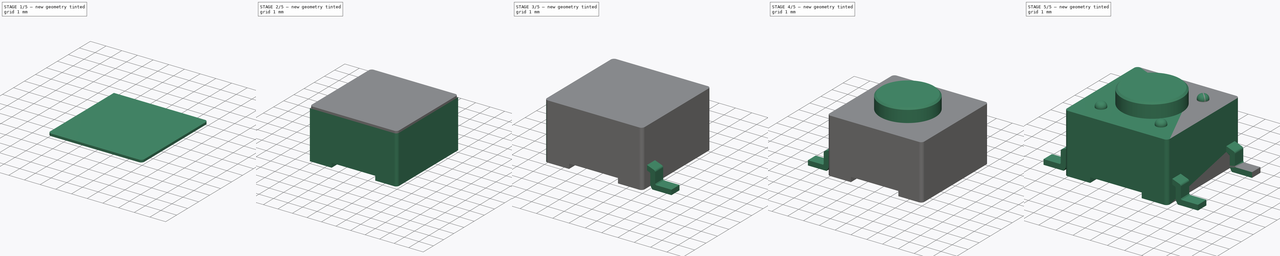
[diagram: build sequence overview — one tinted view per stage of 5, left to right]
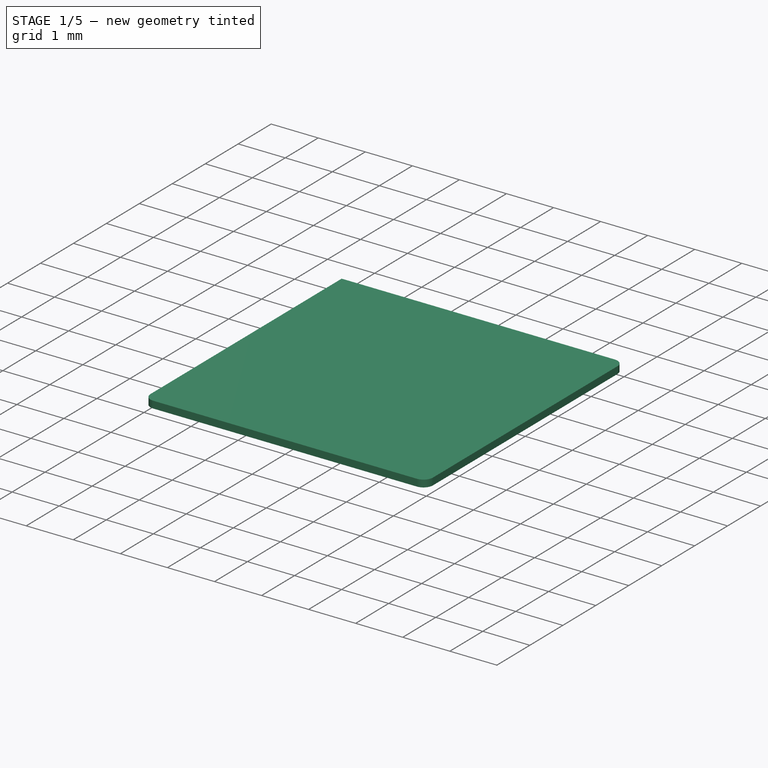
[diagram: stage 1 of 5 — iso view after this stage's code; geometry added in this stage tinted green]
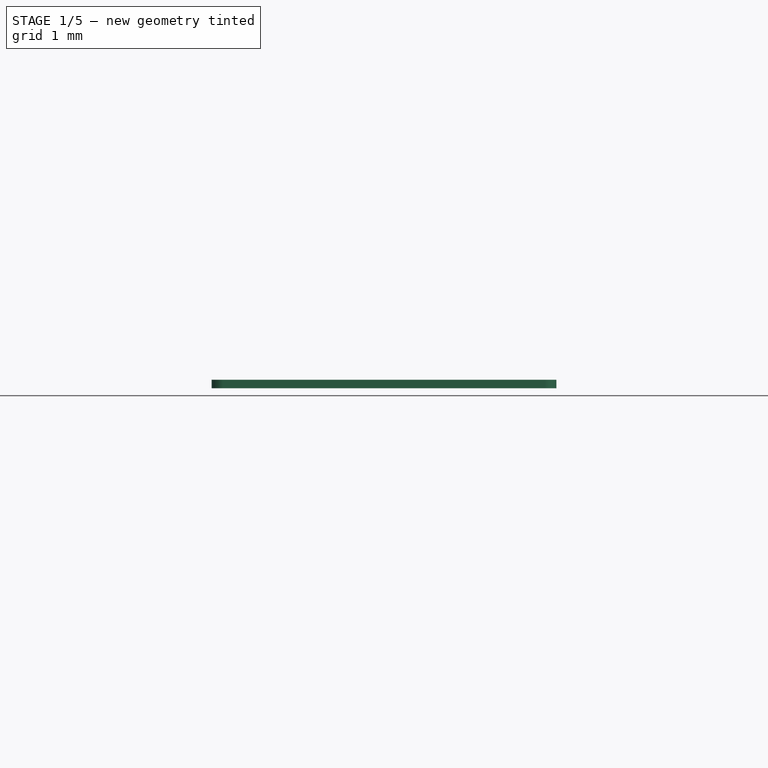
[diagram: stage 1 of 5 — front view after this stage's code; geometry added in this stage tinted green]
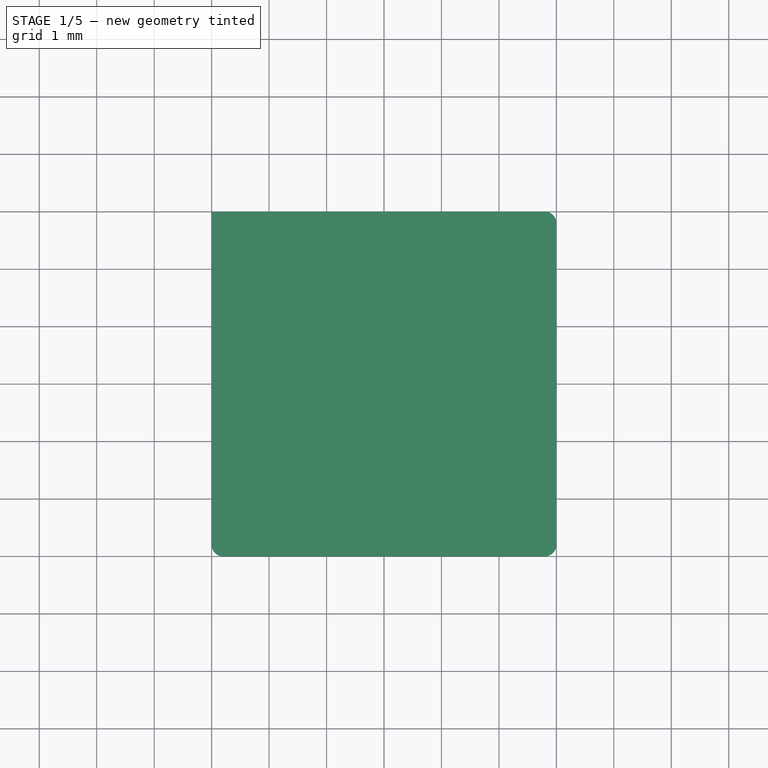
[diagram: stage 1 of 5 — top view after this stage's code; geometry added in this stage tinted green]
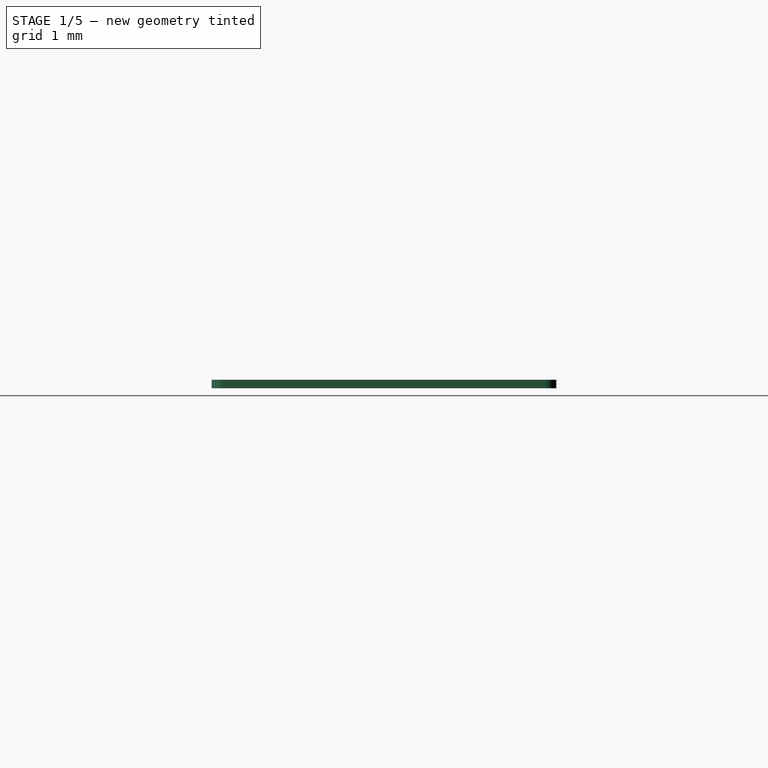
[diagram: stage 1 of 5 — right view after this stage's code; geometry added in this stage tinted green]
FCSTD DOCUMENT  (FreeCAD 0.15R4671 (Git))
Label: SW_SPST_PTS645
License: All rights reserved
LicenseURL: http://en.wikipedia.org/wiki/All_rights_reserved
objects: PartDesign::Fillet×9, Sketcher::SketchObject×6, PartDesign::Pad×5, Part::FeaturePython×2, PartDesign::Chamfer×1, Part::Mirroring×1, PartDesign::Pocket×1, Part::MultiFuse×1
note: 32 computed .brp shape members not serialized (recipe doc carries the construction recipe); baked Part::Feature solids carry a one-line shape summary decoded from their .brp

FEATURE [Sketcher::SketchObject] Sketch001
  Placement = pos=(0,0,3.3) rot=(0,0,1;0rad)
  sketch-geometry (4):
    g0: LineSegment StartX=0 StartY=0 StartZ=0 EndX=6 EndY=0 EndZ=0
    g1: LineSegment StartX=6 StartY=0 StartZ=0 EndX=6 EndY=6 EndZ=0
    g2: LineSegment StartX=6 StartY=6 StartZ=0 EndX=0 EndY=6 EndZ=0
    g3: LineSegment StartX=0 StartY=6 StartZ=0 EndX=0 EndY=0 EndZ=0
  constraints (11):
    c: Coincident(g0,g1)
    c: Coincident(g1,g2)
    c: Coincident(g2,g3)
    c: Coincident(g3,g0)
    c: Horizontal(g0)
    c: Horizontal(g2)
    c: Vertical(g1)
    c: Vertical(g3)
    c: Coincident(g0,g-1)
    c: Distance(g2) = 6
    c: Distance(g1) = 6
FEATURE [PartDesign::Pad] Pad001  label="Cap"
  Length = 0.15
  Length2 = 100
  Placement = pos=(0,0,3.3) rot=(0,0,1;0rad)
  Sketch = -> Sketch001
  Type = 0
FEATURE [PartDesign::Fillet] Fillet002
  Base = -> Pad001 [Edge2]
  Placement = pos=(0,0,3.3) rot=(0,0,1;0rad)
  Radius = 0.2
FEATURE [PartDesign::Fillet] Fillet004
  Base = -> Fillet002 [Edge3]
  Placement = pos=(0,0,3.3) rot=(0,0,1;0rad)
  Radius = 0.2
FEATURE [PartDesign::Fillet] Fillet006
  Base = -> Fillet004 [Edge18]
  Placement = pos=(0,0,3.3) rot=(0,0,1;0rad)
  Radius = 0.2
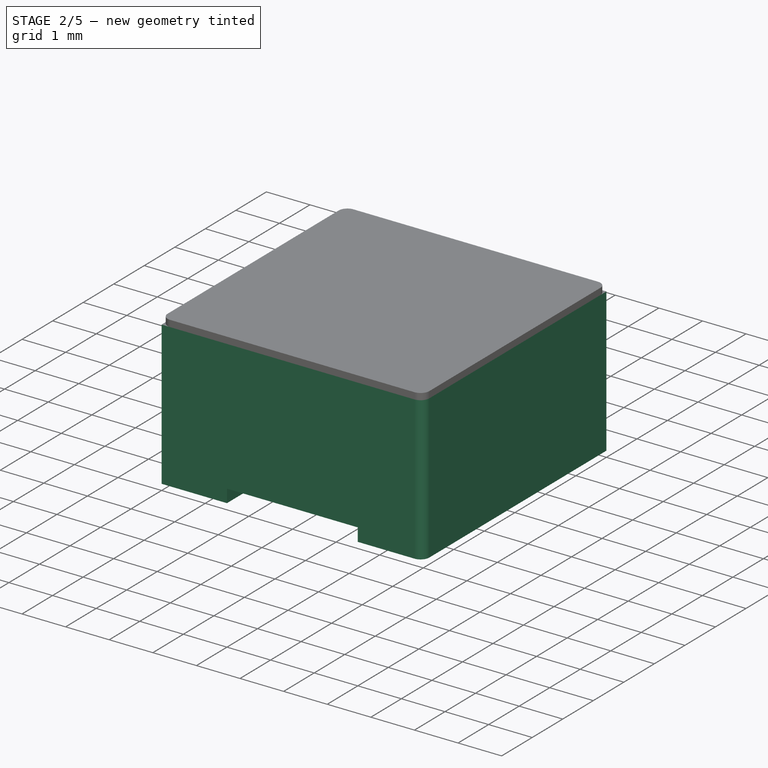
[diagram: stage 2 of 5 — iso view after this stage's code; geometry added in this stage tinted green]
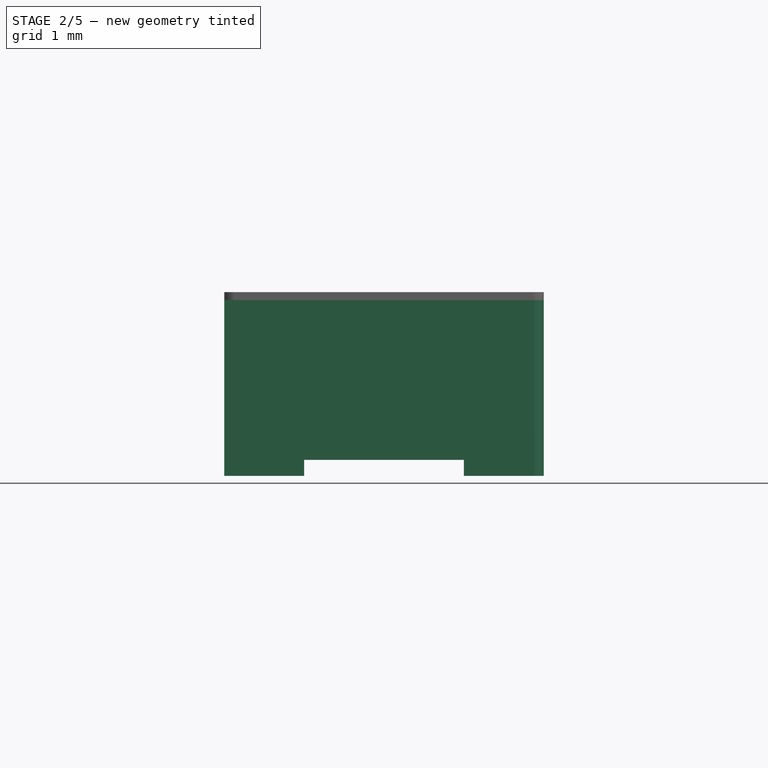
[diagram: stage 2 of 5 — front view after this stage's code; geometry added in this stage tinted green]
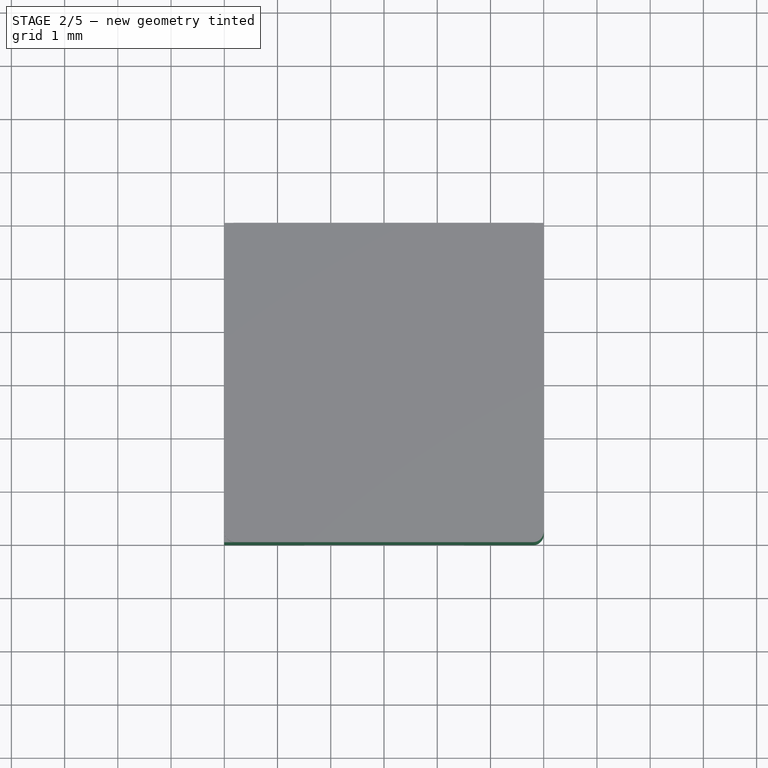
[diagram: stage 2 of 5 — top view after this stage's code; geometry added in this stage tinted green]
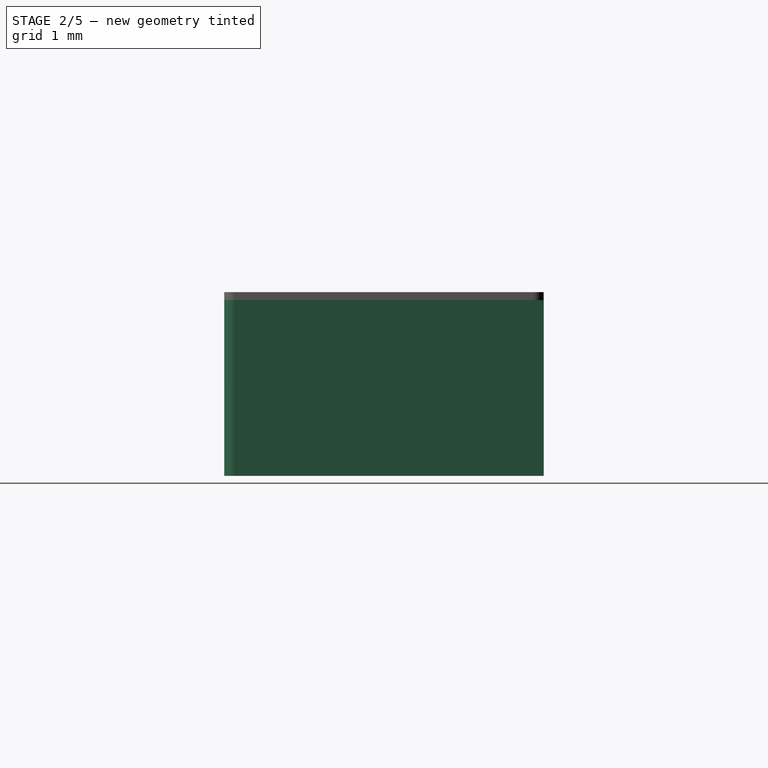
[diagram: stage 2 of 5 — right view after this stage's code; geometry added in this stage tinted green]
FEATURE [Sketcher::SketchObject] Sketch
  sketch-geometry (4):
    g0: LineSegment StartX=0 StartY=0 StartZ=0 EndX=6 EndY=0 EndZ=0
    g1: LineSegment StartX=6 StartY=0 StartZ=0 EndX=6 EndY=6 EndZ=0
    g2: LineSegment StartX=6 StartY=6 StartZ=0 EndX=0 EndY=6 EndZ=0
    g3: LineSegment StartX=0 StartY=6 StartZ=0 EndX=0 EndY=0 EndZ=0
  constraints (11):
    c: Coincident(g0,g1)
    c: Coincident(g1,g2)
    c: Coincident(g2,g3)
    c: Coincident(g3,g0)
    c: Horizontal(g0)
    c: Horizontal(g2)
    c: Vertical(g1)
    c: Vertical(g3)
    c: Coincident(g0,g-1)
    c: Distance(g2) = 6
    c: Distance(g1) = 6
FEATURE [PartDesign::Pad] Pad
  Length = 3.3
  Length2 = 100
  Sketch = -> Sketch
  Type = 0
FEATURE [Sketcher::SketchObject] Sketch005
  Placement = pos=(0,0,0) rot=(1,0,0;1.5708rad)
  Support = -> Pad [Face1]
  sketch-geometry (4):
    g0: LineSegment StartX=1.5 StartY=0 StartZ=0 EndX=4.5 EndY=0 EndZ=0
    g1: LineSegment StartX=4.5 StartY=0 StartZ=0 EndX=4.5 EndY=0.3 EndZ=0
    g2: LineSegment StartX=4.5 StartY=0.3 StartZ=0 EndX=1.5 EndY=0.3 EndZ=0
    g3: LineSegment StartX=1.5 StartY=0.3 StartZ=0 EndX=1.5 EndY=0 EndZ=0
  constraints (12):
    c: Coincident(g0,g1)
    c: Coincident(g1,g2)
    c: Coincident(g2,g3)
    c: Coincident(g3,g0)
    c: Horizontal(g0)
    c: Horizontal(g2)
    c: Vertical(g1)
    c: Vertical(g3)
    c: PointOnObject(g0,g-1)
    c: Distance(g3) = 0.3
    c: Distance(g0) = 3
    c: Distance(g-1,g0) = 1.5
FEATURE [PartDesign::Pocket] Pocket
  Length = 6
  Sketch = -> Sketch005
  Type = 0
FEATURE [PartDesign::Fillet] Fillet001
  Base = -> Pocket [Edge6]
  Radius = 0.2
FEATURE [PartDesign::Fillet] Fillet008  label="Top"
  Base = -> Fillet006 [Edge15]
  Placement = pos=(0,0,3.3) rot=(0,0,1;0rad)
  Radius = 0.2
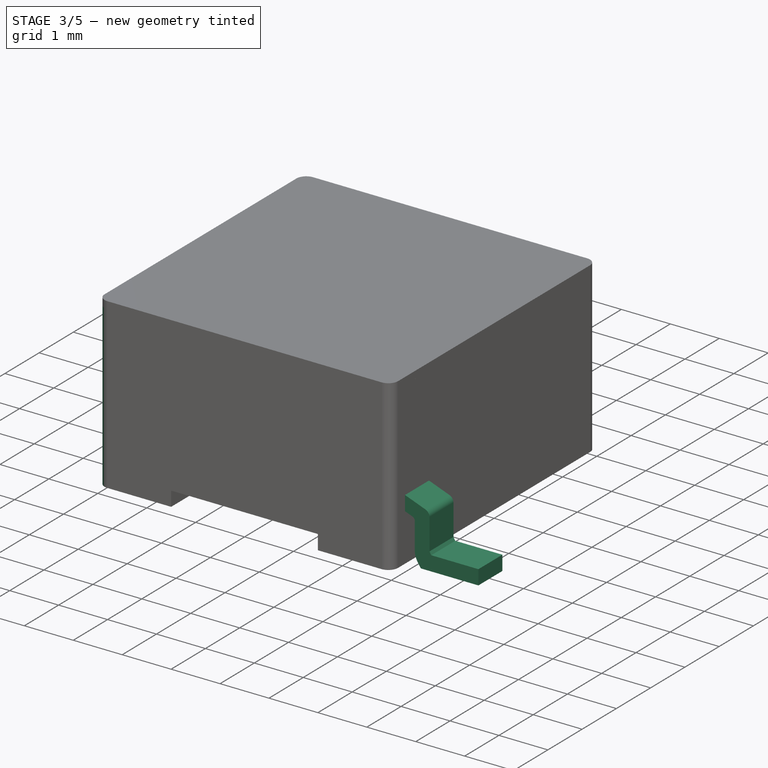
[diagram: stage 3 of 5 — iso view after this stage's code; geometry added in this stage tinted green]
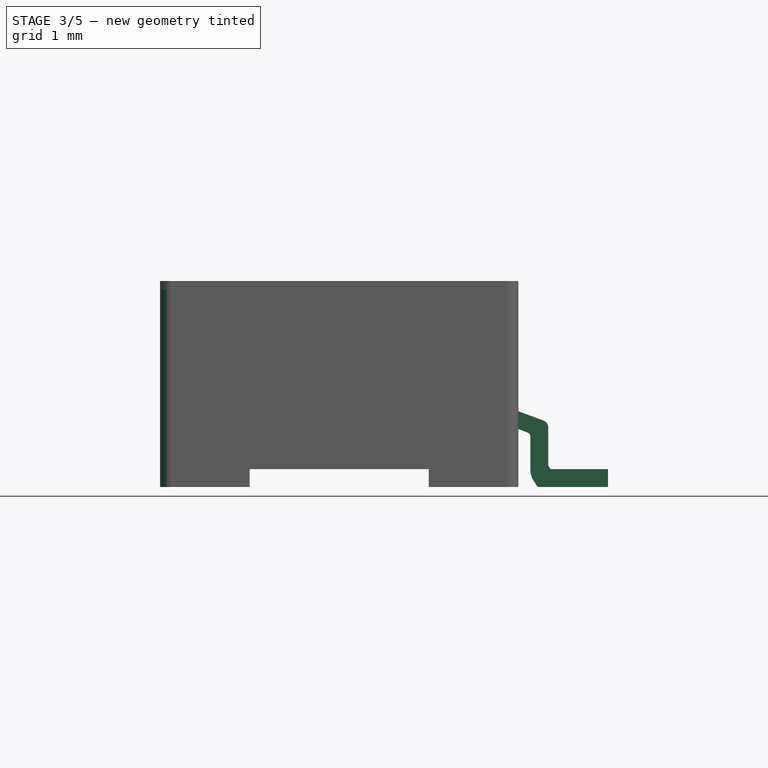
[diagram: stage 3 of 5 — front view after this stage's code; geometry added in this stage tinted green]
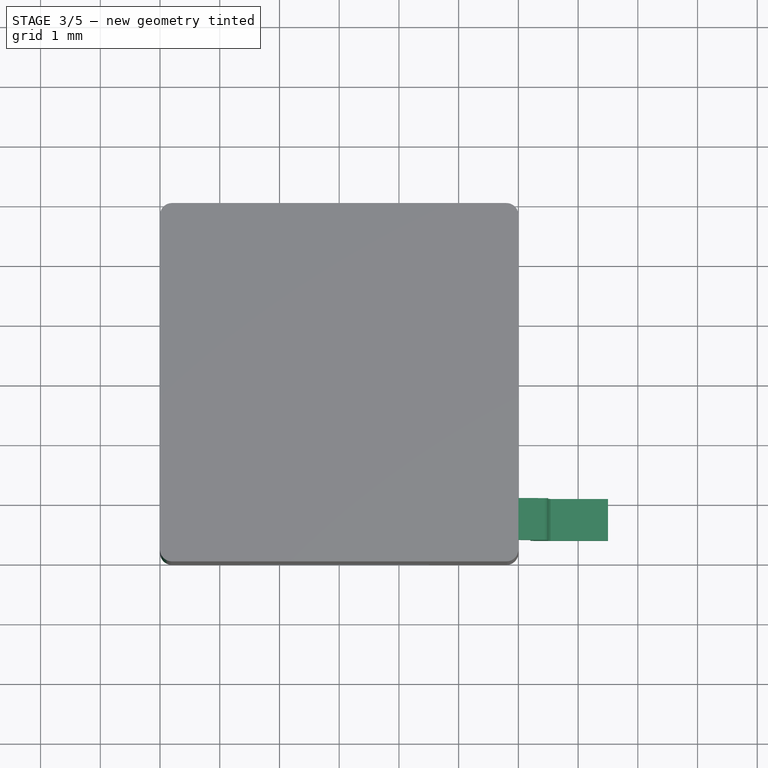
[diagram: stage 3 of 5 — top view after this stage's code; geometry added in this stage tinted green]
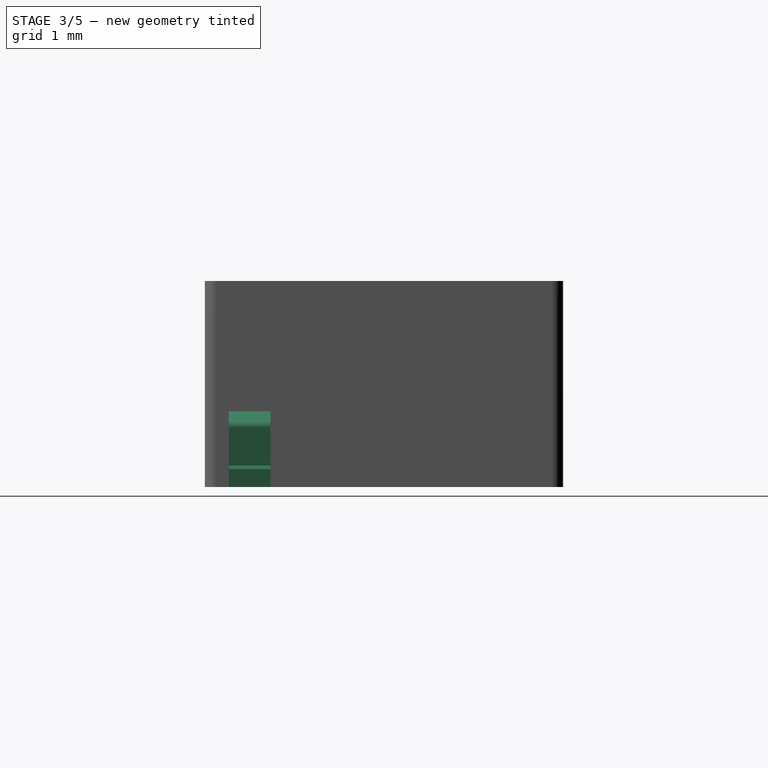
[diagram: stage 3 of 5 — right view after this stage's code; geometry added in this stage tinted green]
FEATURE [Sketcher::SketchObject] Sketch004
  Placement = pos=(0,0.75,0) rot=(1,0,0;1.5708rad)
  sketch-geometry (15):
    g0: LineSegment StartX=7.5 StartY=0 StartZ=0 EndX=6.32001 EndY=0 EndZ=0
    g1: LineSegment StartX=6.32001 StartY=0 StartZ=0 EndX=6.24927 EndY=0.11691 EndZ=0
    g2: LineSegment StartX=6.2 StartY=0.293493 StartZ=0 EndX=6.2 EndY=0.84534 EndZ=0
    g3: LineSegment StartX=6.15341 StartY=0.912414 StartZ=0 EndX=6 EndY=0.969575 EndZ=0
    g4: LineSegment StartX=6 StartY=0.969575 StartZ=0 EndX=6 EndY=1.26958 EndZ=0
    g5: LineSegment StartX=6 StartY=1.26958 StartZ=0 EndX=6.41848 EndY=1.11365 EndZ=0
    g6: LineSegment StartX=6.5 StartY=0.996277 StartZ=0 EndX=6.5 EndY=0.361071 EndZ=0
    g7: LineSegment StartX=6.5 StartY=0.361071 StartZ=0 EndX=6.53695 EndY=0.3 EndZ=0
    g8: LineSegment StartX=6.53695 StartY=0.3 StartZ=0 EndX=7.5 EndY=0.3 EndZ=0
    g9: LineSegment StartX=7.5 StartY=0.3 StartZ=0 EndX=7.5 EndY=0 EndZ=0
    g10: LineSegment [constr] StartX=6.27154 StartY=0.159146 StartZ=0 EndX=6.52821 EndY=0.314458 EndZ=0
    g11: LineSegment [constr] StartX=6.2 StartY=0.688274 StartZ=0 EndX=6.5 EndY=0.688274 EndZ=0
    g12: ArcOfCircle CenterX=6.37474 CenterY=0.996277 CenterZ=0 NormalX=0 NormalY=0 NormalZ=1 Radius=0.125258 StartAngle=0 EndAngle=1.21413
    g13: ArcOfCircle CenterX=6.12842 CenterY=0.84534 CenterZ=0 NormalX=0 NormalY=0 NormalZ=1 Radius=0.071579 StartAngle=0 EndAngle=1.21413
    g14: ArcOfCircle CenterX=6.54109 CenterY=0.293493 CenterZ=0 NormalX=0 NormalY=0 NormalZ=1 Radius=0.341088 StartAngle=3.14159 EndAngle=3.68576
  constraints (35):
    c: PointOnObject(g0,g-1)
    c: PointOnObject(g0,g-1)
    c: Horizontal(g0)
    c: Coincident(g0,g1)
    c: Vertical(g2)
    c: Coincident(g3,g4)
    c: Vertical(g4)
    c: Coincident(g4,g5)
    c: Vertical(g6)
    c: Coincident(g6,g7)
    c: Coincident(g7,g8)
    c: Horizontal(g8)
    c: Coincident(g8,g9)
    c: Coincident(g9,g0)
    c: Vertical(g9)
    c: Equal(g4,g9)
    c: Parallel(g7,g1)
    c: Parallel(g5,g3)
    c: Distance(g4) = 0.3
    c: PointOnObject(g10,g7)
    c: Perpendicular(g1,g10)
    c: Distance(g10) = 0.3
    c: PointOnObject(g11,g2)
    c: Horizontal(g11)
    c: Distance(g11) = 0.3
    c: PointOnObject(g11,g6)
    c: Distance(g3,g6) = 0.5
    c: Distance(g3,g9) = 1.5
    c: Distance(g-1,g0) = 7.5
    c: Tangent(g6,g12) = 1.5708
    c: Tangent(g5,g12) = 1.5708
    c: Tangent(g3,g13) = -1.5708
    c: Tangent(g2,g13) = -1.5708
    c: Tangent(g2,g14) = 1.5708
    c: Tangent(g1,g14) = 1.5708
FEATURE [PartDesign::Pad] Pad004
  Length = 0.7
  Length2 = 100
  Midplane = true
  Placement = pos=(0,0.75,0) rot=(1,0,0;1.5708rad)
  Sketch = -> Sketch004
  Type = 0
FEATURE [PartDesign::Fillet] Fillet003
  Base = -> Fillet001 [Edge6]
  Radius = 0.2
FEATURE [PartDesign::Fillet] Fillet005
  Base = -> Fillet003 [Edge30]
  Radius = 0.2
FEATURE [PartDesign::Fillet] Fillet007  label="Base"
  Base = -> Fillet005 [Edge18]
  Radius = 0.2
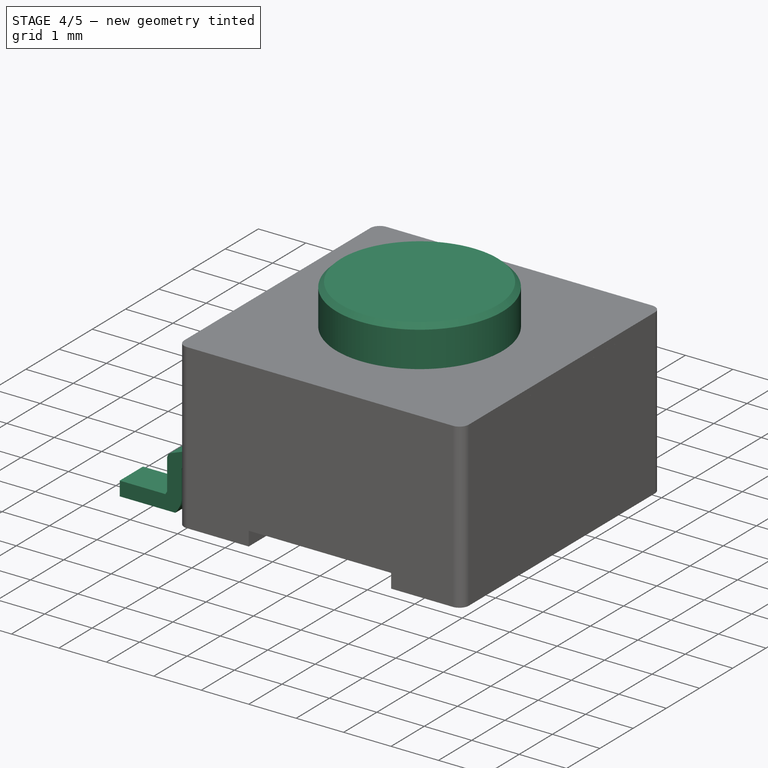
[diagram: stage 4 of 5 — iso view after this stage's code; geometry added in this stage tinted green]
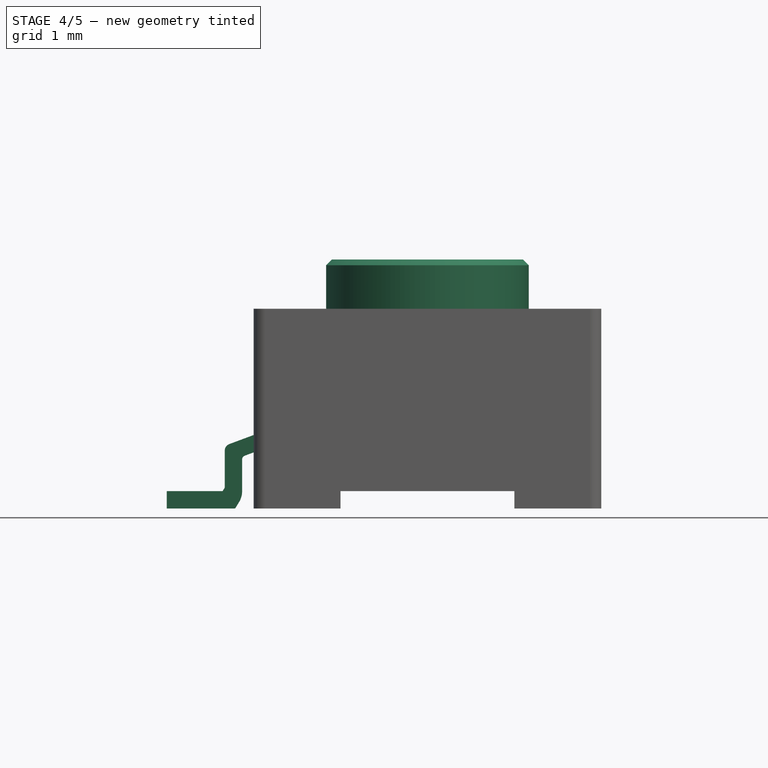
[diagram: stage 4 of 5 — front view after this stage's code; geometry added in this stage tinted green]
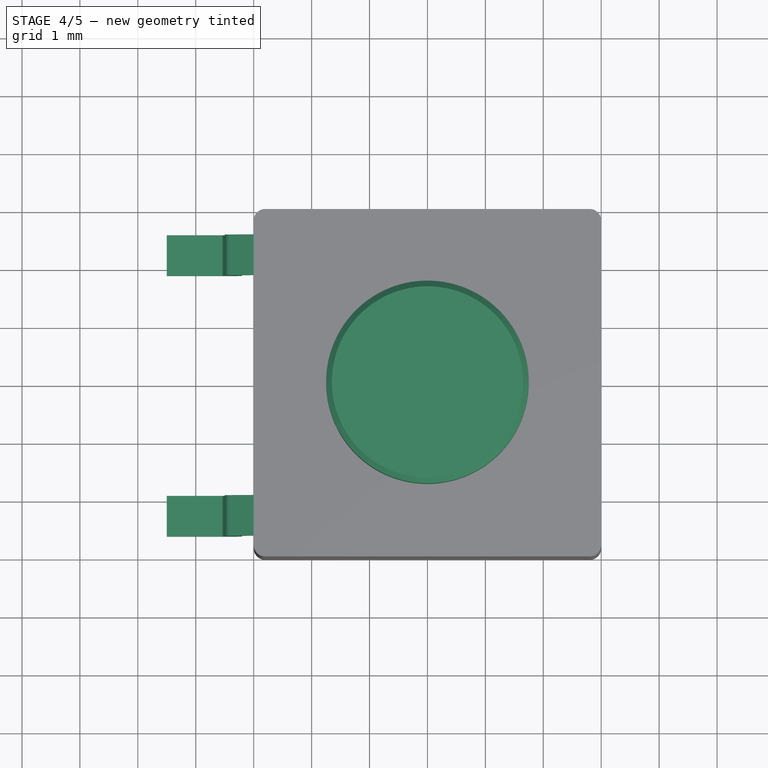
[diagram: stage 4 of 5 — top view after this stage's code; geometry added in this stage tinted green]
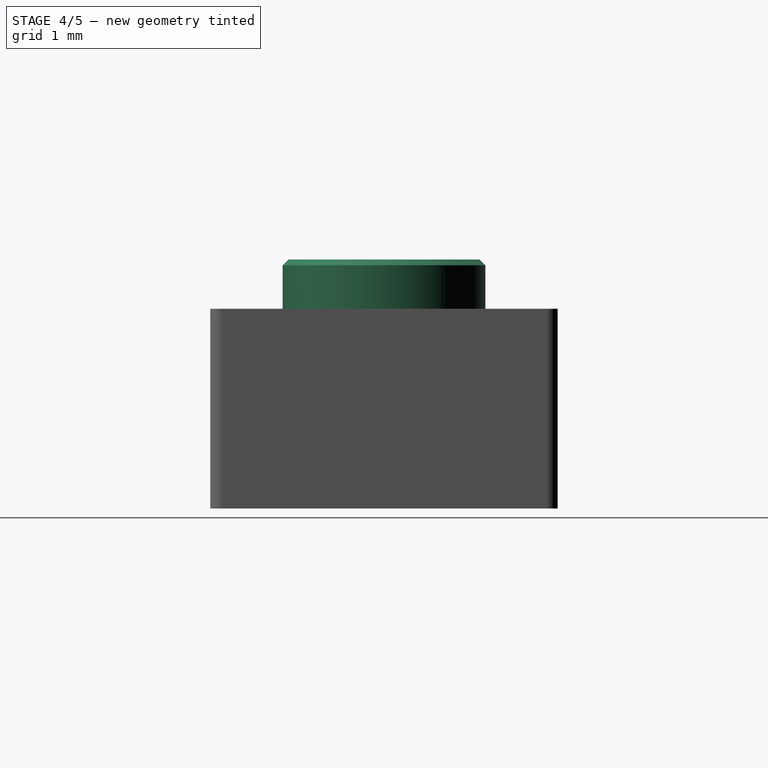
[diagram: stage 4 of 5 — right view after this stage's code; geometry added in this stage tinted green]
FEATURE [Sketcher::SketchObject] Sketch002
  Placement = pos=(0,0,3.45) rot=(0,0,1;0rad)
  sketch-geometry (1):
    g0: Circle CenterX=3 CenterY=3 CenterZ=0 NormalX=0 NormalY=0 NormalZ=1 Radius=1.75
  constraints (3):
    c: DistanceX(g-2,g0) = 3
    c: DistanceY(g-1,g0) = 3
    c: Radius(g0) = 1.75
FEATURE [PartDesign::Pad] Pad002
  Length = 0.85
  Length2 = 100
  Placement = pos=(0,0,3.45) rot=(0,0,1;0rad)
  Sketch = -> Sketch002
  Type = 0
FEATURE [PartDesign::Chamfer] Chamfer
  Base = -> Pad002 [Edge3]
  Placement = pos=(0,0,3.45) rot=(0,0,1;0rad)
  Size = 0.1
FEATURE [Part::FeaturePython] Array001  # Draft array (typed FeaturePython)
  Angle = 360
  ArrayType = 0
  Axis = (0,0,1)
  Base = -> Pad004
  Center = (0,0,0)
  Fuse = false
  IntervalAxis = (0,0,0)
  IntervalX = (1,0,0)
  IntervalY = (0,4.5,0)
  IntervalZ = (0,0,0)
  NumberPolar = 1
  NumberX = 1
  NumberY = 2
  NumberZ = 1
FEATURE [Part::Mirroring] Part__Mirroring  label="Array001 (Mirror #1)"
  Base = (3,0,0)
  Normal = (1,0,0)
  Source = -> Array001
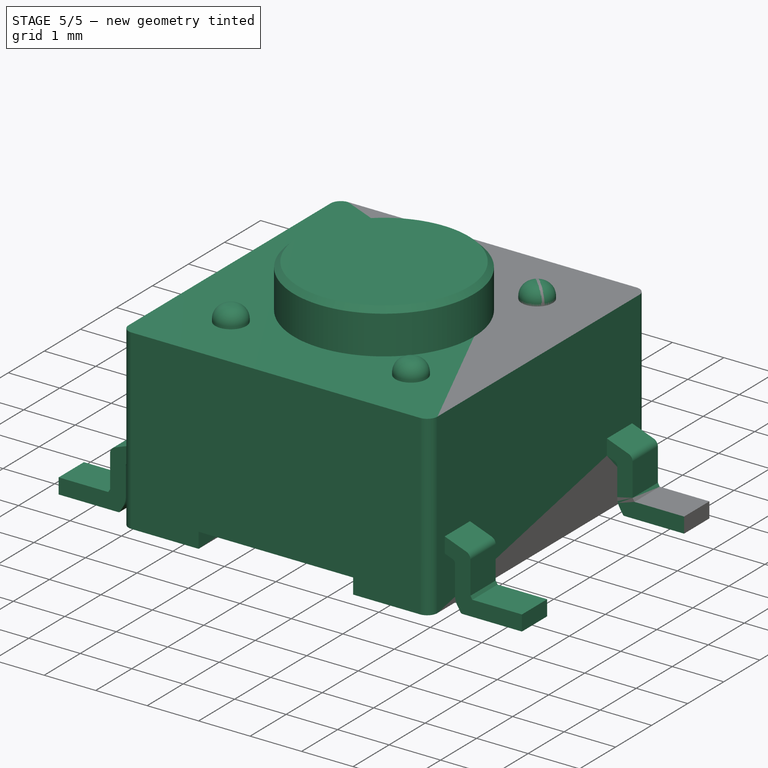
[diagram: stage 5 of 5 — iso view after this stage's code; geometry added in this stage tinted green]
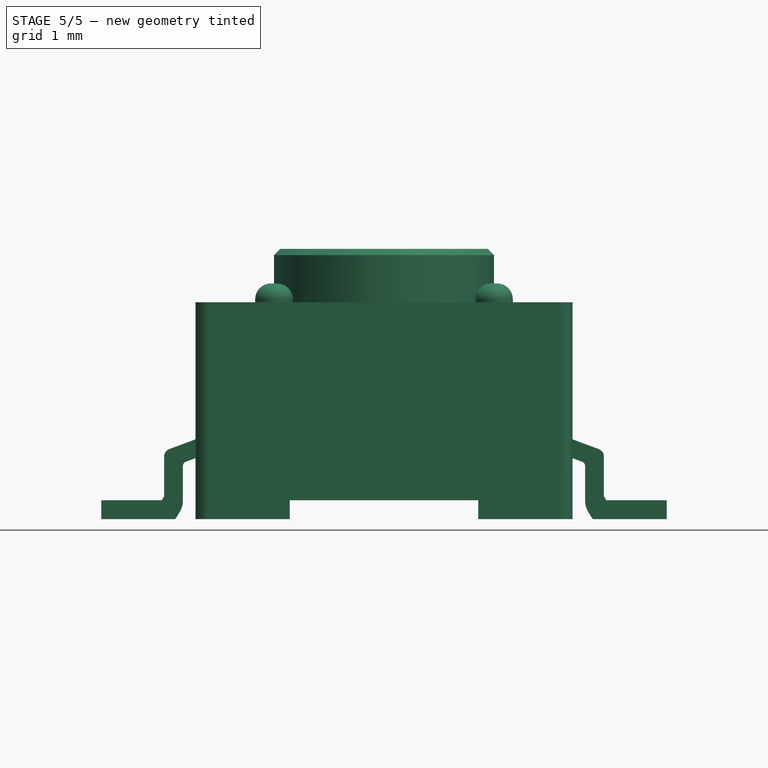
[diagram: stage 5 of 5 — front view after this stage's code; geometry added in this stage tinted green]
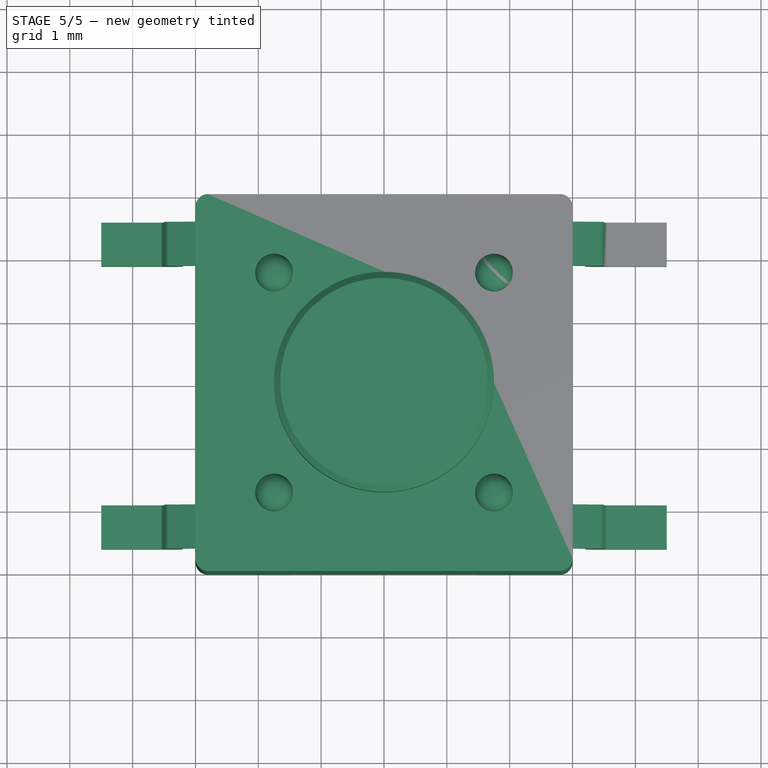
[diagram: stage 5 of 5 — top view after this stage's code; geometry added in this stage tinted green]
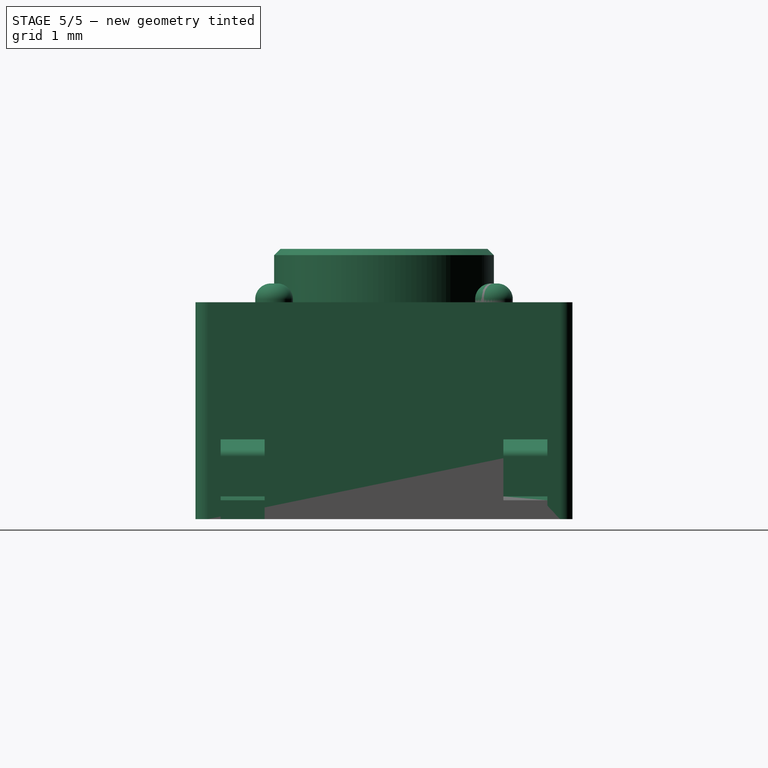
[diagram: stage 5 of 5 — right view after this stage's code; geometry added in this stage tinted green]
FEATURE [Sketcher::SketchObject] Sketch003
  Placement = pos=(0,0,3.45) rot=(0,0,1;0rad)
  sketch-geometry (1):
    g0: Circle CenterX=1.25 CenterY=1.25 CenterZ=0 NormalX=0 NormalY=0 NormalZ=1 Radius=0.3
  constraints (3):
    c: DistanceX(g-2,g0) = 1.25
    c: DistanceY(g-1,g0) = 1.25
    c: Radius(g0) = 0.3
FEATURE [PartDesign::Pad] Pad003
  Length = 0.3
  Length2 = 100
  Placement = pos=(0,0,3.45) rot=(0,0,1;0rad)
  Sketch = -> Sketch003
  Type = 0
FEATURE [PartDesign::Fillet] Fillet
  Base = -> Pad003 [Edge3]
  Placement = pos=(0,0,3.45) rot=(0,0,1;0rad)
  Radius = 0.25
FEATURE [Part::FeaturePython] Array  # Draft array (typed FeaturePython)
  Angle = 360
  ArrayType = 0
  Axis = (0,0,1)
  Base = -> Fillet
  Center = (0,0,0)
  Fuse = false
  IntervalAxis = (0,0,0)
  IntervalX = (3.5,0,0)
  IntervalY = (0,3.5,0)
  IntervalZ = (0,0,0)
  NumberPolar = 1
  NumberX = 2
  NumberY = 2
  NumberZ = 1
FEATURE [Part::MultiFuse] Fusion  label="SW_SPST_PTS645"
  Placement = pos=(-3,-3,0) rot=(0,0,1;0rad)
  Shapes = -> [Fillet008,Fillet007,Part__Mirroring,Array001,Chamfer,Array]
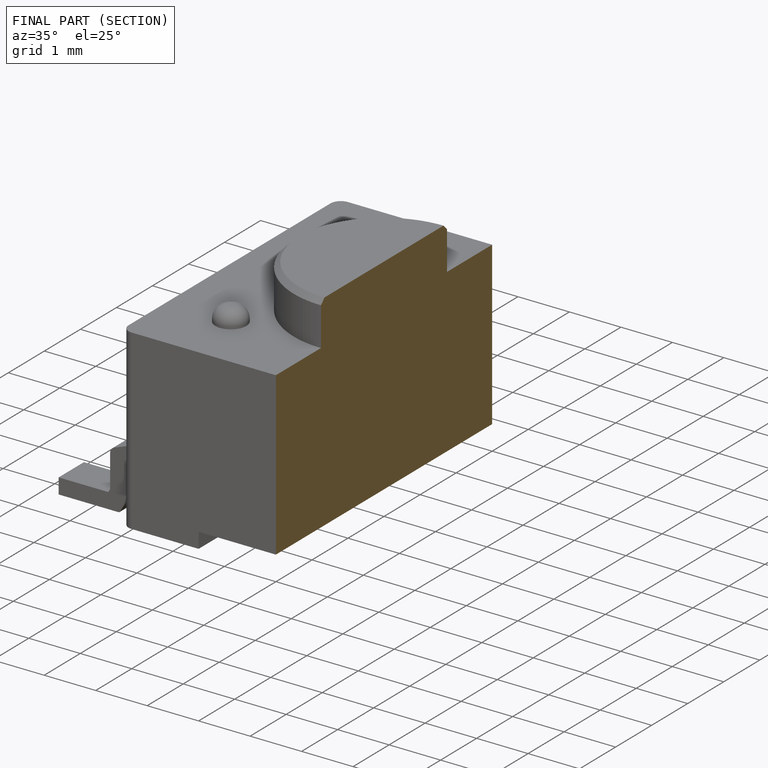
[diagram: finished part — half-section view (interior)]
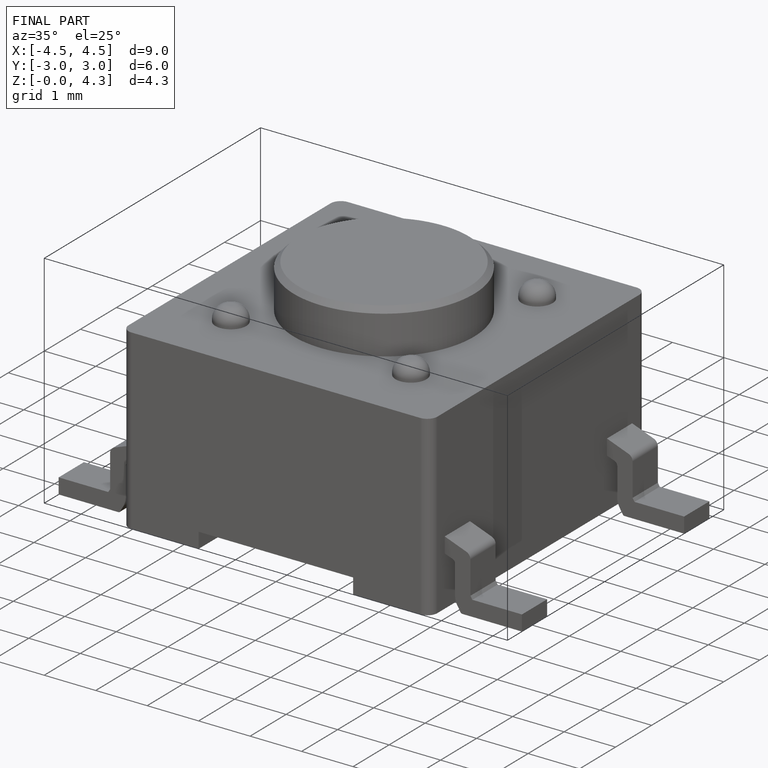
[diagram: finished part — iso view with bounding-box wireframe]
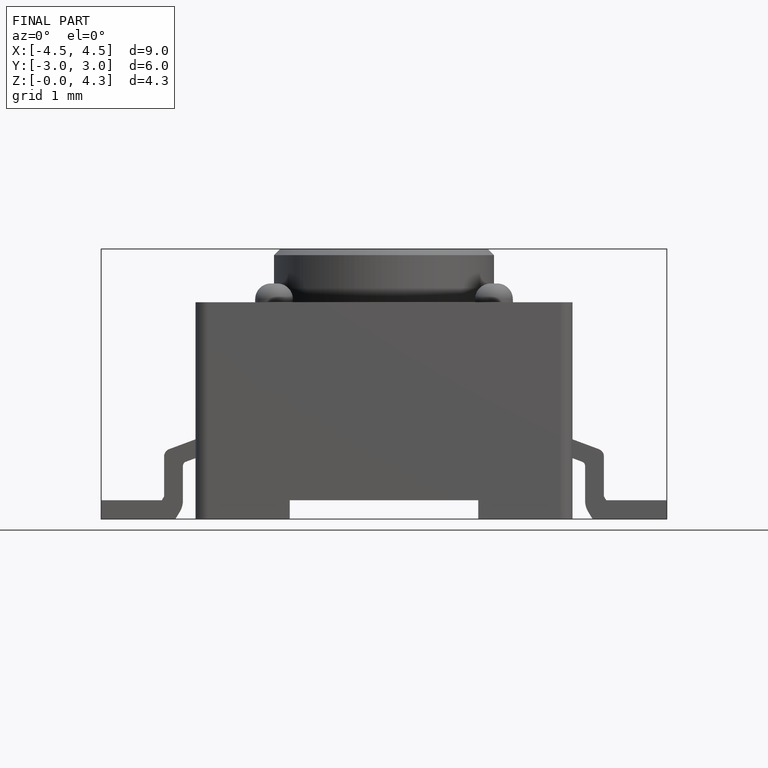
[diagram: finished part — front view with bounding-box wireframe]
